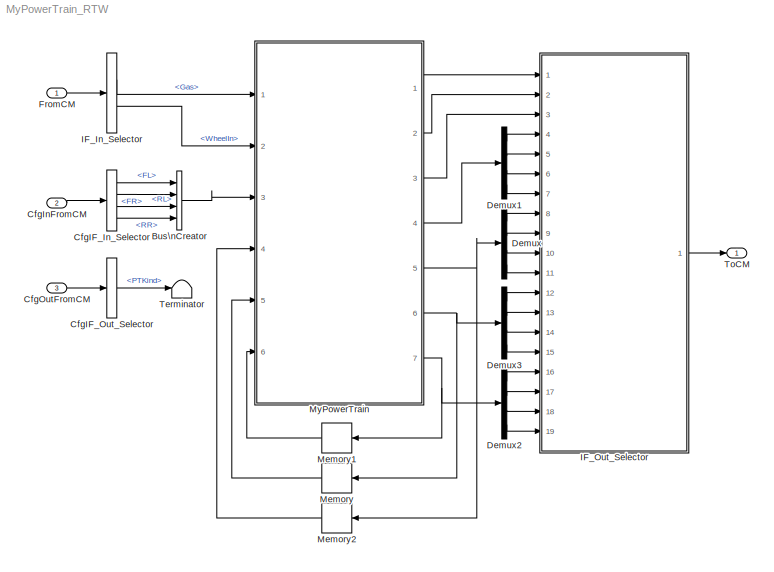
MODEL MyPowerTrain_RTW
KIND model
CONFIG InitFcn = vehicle = 'Car'; if ~length(which('cmcmd')), cmenv; end\nMyPowerTrain_RTW_bus
CONFIG PreLoadFcn = vehicle = 'Car'; if ~length(which('cmcmd')), cmenv; end\nMyPowerTrain_RTW_bus
BLOCK [BusCreator] Bus\nCreator
  DisplayOption = bar
  InheritFromInputs = on
  Inputs = 4
  Ports = [4, 1]
  SID = 65
BLOCK [BusSelector] CfgIF_In_Selector
  OutputSignals = Wheel_Iyy.FL,Wheel_Iyy.FR,Wheel_Iyy.RL,Wheel_Iyy.RR
  Ports = [1, 4]
  SID = 9
BLOCK [BusSelector] CfgIF_Out_Selector
  OutputSignals = PTKind
  Ports = [1, 1]
  SID = 12
BLOCK [Inport] CfgInFromCM
  OutDataTypeStr = Bus: cmPowerTrainCfgIn
  Port = 2
  SID = 8
BLOCK [Inport] CfgOutFromCM
  OutDataTypeStr = Bus: cmPowerTrainCfgOut
  Port = 3
  SID = 11
BLOCK [Demux] Demux
  Ports = [1, 4]
  SID = 66
BLOCK [Demux] Demux1
  Ports = [1, 4]
  SID = 67
BLOCK [Demux] Demux2
  Ports = [1, 4]
  SID = 68
BLOCK [Demux] Demux3
  Ports = [1, 4]
  SID = 69
BLOCK [Inport] FromCM
  OutDataTypeStr = Bus: cmPowerTrainIn
  SID = 1
BLOCK [BusSelector] IF_In_Selector
  OutputSignals = Gas,WheelIn
  Ports = [1, 2]
  SID = 2
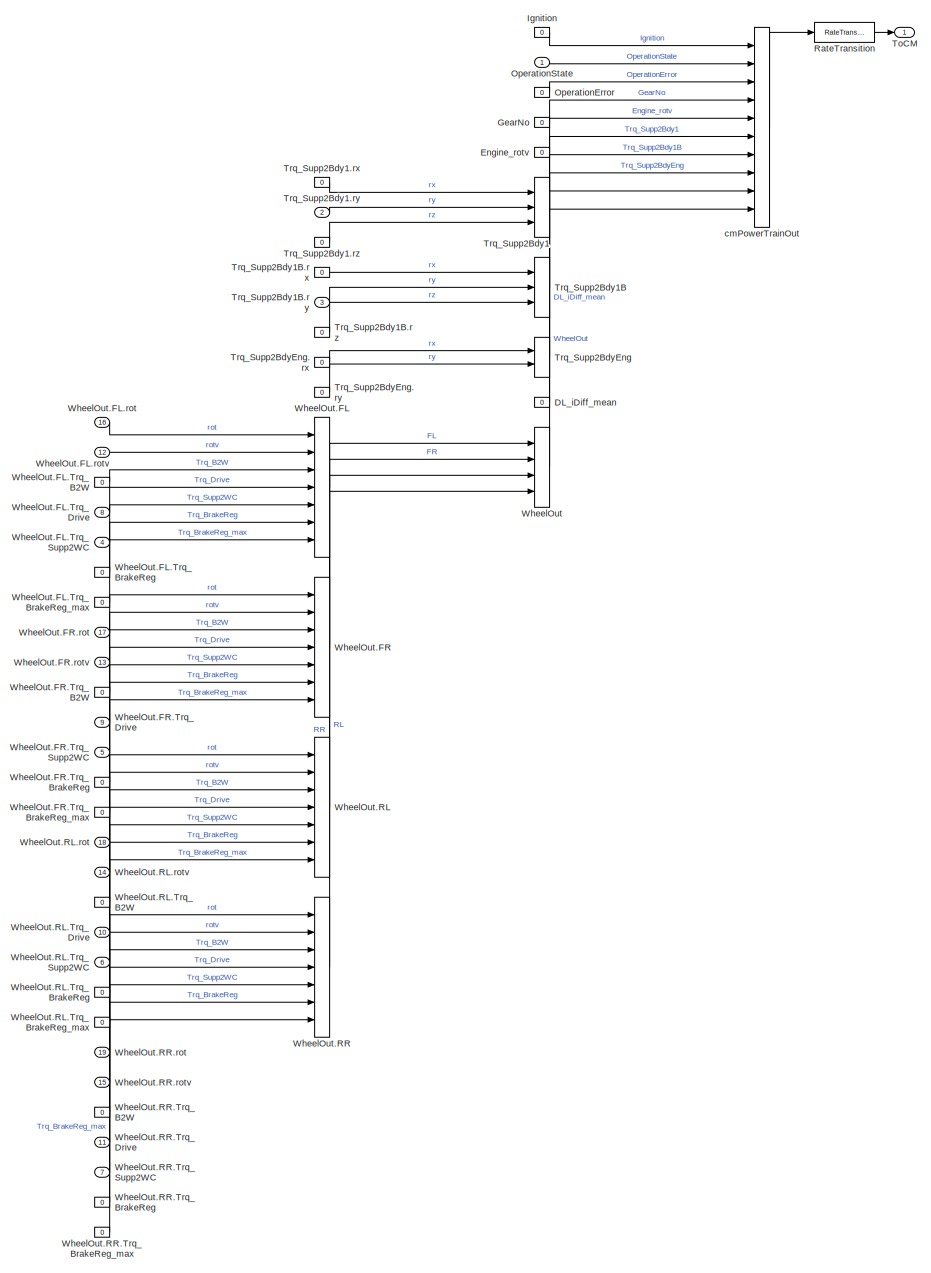
[diagram: IF_Out_Selector - part 1/1, most of the canvas]
BLOCK [SubSystem] IF_Out_Selector
  OpenFcn = cmSignalSelect('SignalSelection_CB',gcb)
  Ports = [19, 1]
  RequestExecContextInheritance = off
  SID = 5
  UserData = DataTag0
  UserDataPersistent = on
BLOCK [Constant] IF_Out_Selector/DL_iDiff_mean
  SID = 31
  Value = 0
BLOCK [Constant] IF_Out_Selector/Engine_rotv
  SID = 19
  Value = 0
BLOCK [Constant] IF_Out_Selector/GearNo
  SID = 18
  Value = 0
BLOCK [Constant] IF_Out_Selector/Ignition
  SID = 15
  Value = 0
BLOCK [Constant] IF_Out_Selector/OperationError
  SID = 17
  Value = 0
BLOCK [Inport] IF_Out_Selector/OperationState
  SID = 147
BLOCK [RateTransition] IF_Out_Selector/RateTransition
  OutPortSampleTime = str2num(get_param(bdroot,'FixedStep'))
  SID = 6
BLOCK [Outport] IF_Out_Selector/ToCM
  SID = 7
  VectorParamsAs1DForOutWhenUnconnected = off
BLOCK [BusCreator] IF_Out_Selector/Trq_Supp2Bdy1
  InheritFromInputs = on
  Inputs = 3
  Ports = [3, 1]
  SID = 20
BLOCK [Constant] IF_Out_Selector/Trq_Supp2Bdy1.rx
  SID = 21
  Value = 0
BLOCK [Inport] IF_Out_Selector/Trq_Supp2Bdy1.ry
  Port = 2
  SID = 148
BLOCK [Constant] IF_Out_Selector/Trq_Supp2Bdy1.rz
  SID = 23
  Value = 0
BLOCK [BusCreator] IF_Out_Selector/Trq_Supp2Bdy1B
  InheritFromInputs = on
  Inputs = 3
  Ports = [3, 1]
  SID = 24
BLOCK [Constant] IF_Out_Selector/Trq_Supp2Bdy1B.rx
  SID = 25
  Value = 0
BLOCK [Inport] IF_Out_Selector/Trq_Supp2Bdy1B.ry
  Port = 3
  SID = 149
BLOCK [Constant] IF_Out_Selector/Trq_Supp2Bdy1B.rz
  SID = 27
  Value = 0
BLOCK [BusCreator] IF_Out_Selector/Trq_Supp2BdyEng
  InheritFromInputs = on
  Inputs = 2
  Ports = [2, 1]
  SID = 28
BLOCK [Constant] IF_Out_Selector/Trq_Supp2BdyEng.rx
  SID = 29
  Value = 0
BLOCK [Constant] IF_Out_Selector/Trq_Supp2BdyEng.ry
  SID = 30
  Value = 0
BLOCK [BusCreator] IF_Out_Selector/WheelOut
  InheritFromInputs = on
  Inputs = 4
  Ports = [4, 1]
  SID = 32
BLOCK [BusCreator] IF_Out_Selector/WheelOut.FL
  InheritFromInputs = on
  Inputs = 7
  Ports = [7, 1]
  SID = 33
BLOCK [Constant] IF_Out_Selector/WheelOut.FL.Trq_B2W
  SID = 36
  Value = 0
BLOCK [Constant] IF_Out_Selector/WheelOut.FL.Trq_BrakeReg
  SID = 39
  Value = 0
BLOCK [Constant] IF_Out_Selector/WheelOut.FL.Trq_BrakeReg_max
  SID = 40
  Value = 0
BLOCK [Inport] IF_Out_Selector/WheelOut.FL.Trq_Drive
  Port = 8
  SID = 154
BLOCK [Inport] IF_Out_Selector/WheelOut.FL.Trq_Supp2WC
  Port = 4
  SID = 150
BLOCK [Inport] IF_Out_Selector/WheelOut.FL.rot
  Port = 16
  SID = 162
BLOCK [Inport] IF_Out_Selector/WheelOut.FL.rotv
  Port = 12
  SID = 158
BLOCK [BusCreator] IF_Out_Selector/WheelOut.FR
  InheritFromInputs = on
  Inputs = 7
  Ports = [7, 1]
  SID = 41
BLOCK [Constant] IF_Out_Selector/WheelOut.FR.Trq_B2W
  SID = 44
  Value = 0
BLOCK [Constant] IF_Out_Selector/WheelOut.FR.Trq_BrakeReg
  SID = 47
  Value = 0
BLOCK [Constant] IF_Out_Selector/WheelOut.FR.Trq_BrakeReg_max
  SID = 48
  Value = 0
BLOCK [Inport] IF_Out_Selector/WheelOut.FR.Trq_Drive
  Port = 9
  SID = 155
BLOCK [Inport] IF_Out_Selector/WheelOut.FR.Trq_Supp2WC
  Port = 5
  SID = 151
BLOCK [Inport] IF_Out_Selector/WheelOut.FR.rot
  Port = 17
  SID = 163
BLOCK [Inport] IF_Out_Selector/WheelOut.FR.rotv
  Port = 13
  SID = 159
BLOCK [BusCreator] IF_Out_Selector/WheelOut.RL
  InheritFromInputs = on
  Inputs = 7
  Ports = [7, 1]
  SID = 49
BLOCK [Constant] IF_Out_Selector/WheelOut.RL.Trq_B2W
  SID = 52
  Value = 0
BLOCK [Constant] IF_Out_Selector/WheelOut.RL.Trq_BrakeReg
  SID = 55
  Value = 0
BLOCK [Constant] IF_Out_Selector/WheelOut.RL.Trq_BrakeReg_max
  SID = 56
  Value = 0
BLOCK [Inport] IF_Out_Selector/WheelOut.RL.Trq_Drive
  Port = 10
  SID = 156
BLOCK [Inport] IF_Out_Selector/WheelOut.RL.Trq_Supp2WC
  Port = 6
  SID = 152
BLOCK [Inport] IF_Out_Selector/WheelOut.RL.rot
  Port = 18
  SID = 164
BLOCK [Inport] IF_Out_Selector/WheelOut.RL.rotv
  Port = 14
  SID = 160
BLOCK [BusCreator] IF_Out_Selector/WheelOut.RR
  InheritFromInputs = on
  Inputs = 7
  Ports = [7, 1]
  SID = 57
BLOCK [Constant] IF_Out_Selector/WheelOut.RR.Trq_B2W
  SID = 60
  Value = 0
BLOCK [Constant] IF_Out_Selector/WheelOut.RR.Trq_BrakeReg
  SID = 63
  Value = 0
BLOCK [Constant] IF_Out_Selector/WheelOut.RR.Trq_BrakeReg_max
  SID = 64
  Value = 0
BLOCK [Inport] IF_Out_Selector/WheelOut.RR.Trq_Drive
  Port = 11
  SID = 157
BLOCK [Inport] IF_Out_Selector/WheelOut.RR.Trq_Supp2WC
  Port = 7
  SID = 153
BLOCK [Inport] IF_Out_Selector/WheelOut.RR.rot
  Port = 19
  SID = 165
BLOCK [Inport] IF_Out_Selector/WheelOut.RR.rotv
  Port = 15
  SID = 161
BLOCK [BusCreator] IF_Out_Selector/cmPowerTrainOut
  InheritFromInputs = on
  Inputs = 10
  Ports = [10, 1]
  SID = 14
BLOCK [Memory] Memory
  SID = 70
BLOCK [Memory] Memory1
  SID = 71
BLOCK [Memory] Memory2
  SID = 72
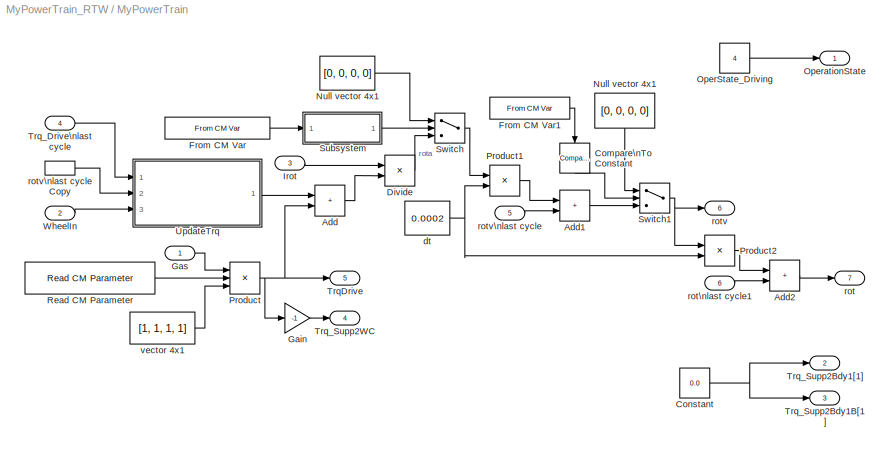
BLOCK [SubSystem] MyPowerTrain
  Ports = [6, 7]
  RequestExecContextInheritance = off
  SID = 73
BLOCK [Sum] MyPowerTrain/Add
  IconShape = rectangular
  Ports = [2, 1]
  SID = 80
BLOCK [Sum] MyPowerTrain/Add1
  IconShape = rectangular
  Ports = [2, 1]
  SID = 81
BLOCK [Sum] MyPowerTrain/Add2
  IconShape = rectangular
  Ports = [2, 1]
  SID = 82
BLOCK [Reference] MyPowerTrain/Compare\nTo Constant  REF=simulink/Logic and Bit\nOperations/Compare\nTo Constant
  FunctionWithSeparateData = off
  LogicOutDataTypeMode = uint8
  NameLocation = left
  Ports = [1, 1]
  RTWMemSecDataConstants = Inherit from model
  RTWMemSecDataInternal = Inherit from model
  RTWMemSecDataParameters = Inherit from model
  RTWMemSecFuncExecute = Inherit from model
  RTWMemSecFuncInitTerm = Inherit from model
  SID = 83
  ShowPortLabels = FromPortIcon
  SourceBlock = simulink/Logic and Bit\nOperations/Compare\nTo Constant
  SourceProductBaseCode = SL
  SourceType = Compare To Constant
  SystemSampleTime = -1
  ZeroCross = off
  const = 11
  relop = ==
BLOCK [Constant] MyPowerTrain/Constant
  SID = 84
  Value = 0.0
BLOCK [Product] MyPowerTrain/Divide
  Inputs = /*
  Ports = [2, 1]
  SID = 85
BLOCK [Reference] MyPowerTrain/From CM Var  REF=CarMaker4SL/From CM Var
  Ports = [0, 1]
  SID = 86
  SourceBlock = CarMaker4SL/From CM Var
  SourceProductName = CarMaker4SL
  SourceType = From CarMaker Var
  xname = SimCore.State
BLOCK [Reference] MyPowerTrain/From CM Var1  REF=CarMaker4SL/From CM Var
  Ports = [0, 1]
  SID = 87
  SourceBlock = CarMaker4SL/From CM Var
  SourceProductName = CarMaker4SL
  SourceType = From CarMaker Var
  xname = SimCore.State
BLOCK [Gain] MyPowerTrain/Gain
  Gain = -1
  SID = 88
BLOCK [Inport] MyPowerTrain/Gas
  SID = 74
BLOCK [Inport] MyPowerTrain/Irot
  Port = 3
  SID = 76
BLOCK [Constant] MyPowerTrain/Null vector 4x1
  SID = 89
  Value = [0, 0, 0, 0]
BLOCK [Constant] MyPowerTrain/Null vector 4x1 
  NameLocation = right
  SID = 90
  Value = [0, 0, 0, 0]
BLOCK [Constant] MyPowerTrain/OperState_Driving
  SID = 91
  Value = 4
BLOCK [Outport] MyPowerTrain/OperationState
  SID = 139
  VectorParamsAs1DForOutWhenUnconnected = off
BLOCK [Product] MyPowerTrain/Product
  Inputs = 3
  Ports = [3, 1]
  RndMeth = Zero
  SID = 92
BLOCK [Product] MyPowerTrain/Product1
  Ports = [2, 1]
  RndMeth = Zero
  SID = 93
BLOCK [Product] MyPowerTrain/Product2
  Ports = [2, 1]
  RndMeth = Zero
  SID = 94
BLOCK [Reference] MyPowerTrain/Read CM Parameter  REF=CarMaker4SL/Read CM Parameter
  Ports = [0, 1]
  SID = 95
  SourceBlock = CarMaker4SL/Read CM Parameter
  SourceProductName = CarMaker4SL
  SourceType = Read CarMaker Infofile Parameter
  xdefaults = []
  xfile = Vehicle
  xkey = MyPowerTrain.Gas2Trq
  xmuxed = on
  xnout = 1
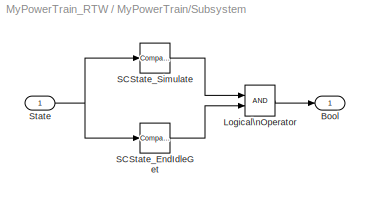
BLOCK [SubSystem] MyPowerTrain/Subsystem
  Ports = [1, 1]
  RequestExecContextInheritance = off
  SID = 96
BLOCK [Outport] MyPowerTrain/Subsystem/Bool
  SID = 101
  VectorParamsAs1DForOutWhenUnconnected = off
BLOCK [Logic] MyPowerTrain/Subsystem/Logical\nOperator
  AllPortsSameDT = off
  OutDataTypeStr = boolean
  Ports = [2, 1]
  SID = 98
BLOCK [Reference] MyPowerTrain/Subsystem/SCState_EndIdleGet  REF=simulink/Logic and Bit\nOperations/Compare\nTo Constant
  FunctionWithSeparateData = off
  LogicOutDataTypeMode = uint8
  Ports = [1, 1]
  RTWMemSecDataConstants = Inherit from model
  RTWMemSecDataInternal = Inherit from model
  RTWMemSecDataParameters = Inherit from model
  RTWMemSecFuncExecute = Inherit from model
  RTWMemSecFuncInitTerm = Inherit from model
  SID = 99
  ShowPortLabels = FromPortIcon
  SourceBlock = simulink/Logic and Bit\nOperations/Compare\nTo Constant
  SourceProductBaseCode = SL
  SourceType = Compare To Constant
  SystemSampleTime = -1
  ZeroCross = off
  const = 10
  relop = ~=
BLOCK [Reference] MyPowerTrain/Subsystem/SCState_Simulate  REF=simulink/Logic and Bit\nOperations/Compare\nTo Constant
  FunctionWithSeparateData = off
  LogicOutDataTypeMode = uint8
  Ports = [1, 1]
  RTWMemSecDataConstants = Inherit from model
  RTWMemSecDataInternal = Inherit from model
  RTWMemSecDataParameters = Inherit from model
  RTWMemSecFuncExecute = Inherit from model
  RTWMemSecFuncInitTerm = Inherit from model
  SID = 100
  ShowPortLabels = FromPortIcon
  SourceBlock = simulink/Logic and Bit\nOperations/Compare\nTo Constant
  SourceProductBaseCode = SL
  SourceType = Compare To Constant
  SystemSampleTime = -1
  ZeroCross = off
  const = 8
  relop = ~=
BLOCK [Inport] MyPowerTrain/Subsystem/State
  SID = 97
BLOCK [Switch] MyPowerTrain/Switch
  Criteria = u2 ~= 0
  InputSameDT = off
  SID = 102
  SaturateOnIntegerOverflow = off
BLOCK [Switch] MyPowerTrain/Switch1
  Criteria = u2 ~= 0
  InputSameDT = off
  SID = 103
  SaturateOnIntegerOverflow = off
BLOCK [Outport] MyPowerTrain/TrqDrive
  Port = 5
  SID = 143
  VectorParamsAs1DForOutWhenUnconnected = off
BLOCK [Inport] MyPowerTrain/Trq_Drive\nlast cycle
  Port = 4
  SID = 77
BLOCK [Outport] MyPowerTrain/Trq_Supp2Bdy1B[1]
  Port = 3
  SID = 141
  VectorParamsAs1DForOutWhenUnconnected = off
BLOCK [Outport] MyPowerTrain/Trq_Supp2Bdy1[1]
  Port = 2
  SID = 140
  VectorParamsAs1DForOutWhenUnconnected = off
BLOCK [Outport] MyPowerTrain/Trq_Supp2WC
  Port = 4
  SID = 142
  VectorParamsAs1DForOutWhenUnconnected = off
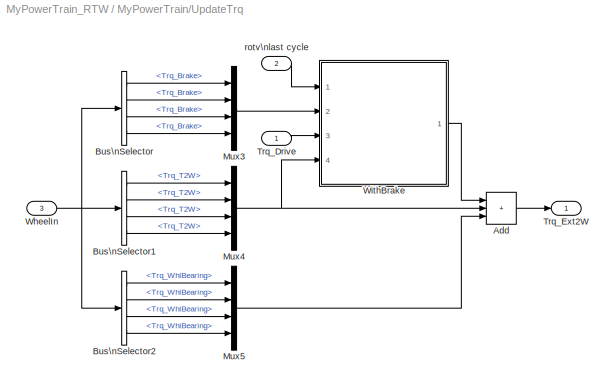
BLOCK [SubSystem] MyPowerTrain/UpdateTrq
  Ports = [3, 1]
  RequestExecContextInheritance = off
  SID = 104
BLOCK [Sum] MyPowerTrain/UpdateTrq/Add
  IconShape = rectangular
  Inputs = +++
  Ports = [3, 1]
  SID = 108
BLOCK [BusSelector] MyPowerTrain/UpdateTrq/Bus\nSelector
  OutputSignals = FL.Trq_Brake,FR.Trq_Brake,RL.Trq_Brake,RR.Trq_Brake
  Ports = [1, 4]
  SID = 109
BLOCK [BusSelector] MyPowerTrain/UpdateTrq/Bus\nSelector1
  OutputSignals = FL.Trq_T2W,FR.Trq_T2W,RL.Trq_T2W,RR.Trq_T2W
  Ports = [1, 4]
  SID = 110
BLOCK [BusSelector] MyPowerTrain/UpdateTrq/Bus\nSelector2
  OutputSignals = FL.Trq_WhlBearing,FR.Trq_WhlBearing,RL.Trq_WhlBearing,RR.Trq_WhlBearing
  Ports = [1, 4]
  SID = 111
BLOCK [Mux] MyPowerTrain/UpdateTrq/Mux3
  DisplayOption = bar
  Ports = [4, 1]
  SID = 112
BLOCK [Mux] MyPowerTrain/UpdateTrq/Mux4
  DisplayOption = bar
  Ports = [4, 1]
  SID = 113
BLOCK [Mux] MyPowerTrain/UpdateTrq/Mux5
  DisplayOption = bar
  Ports = [4, 1]
  SID = 114
BLOCK [Inport] MyPowerTrain/UpdateTrq/Trq_Drive
  SID = 105
BLOCK [Outport] MyPowerTrain/UpdateTrq/Trq_Ext2W
  SID = 135
  VectorParamsAs1DForOutWhenUnconnected = off
BLOCK [Inport] MyPowerTrain/UpdateTrq/WheelIn
  Port = 3
  SID = 107
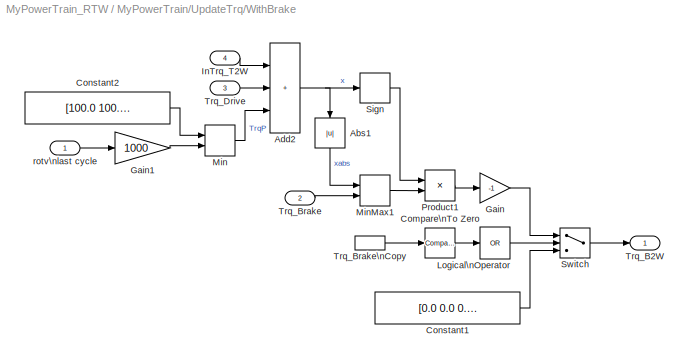
BLOCK [SubSystem] MyPowerTrain/UpdateTrq/WithBrake
  Ports = [4, 1]
  RequestExecContextInheritance = off
  SID = 115
BLOCK [Abs] MyPowerTrain/UpdateTrq/WithBrake/Abs1
  NameLocation = left
  SID = 120
  SaturateOnIntegerOverflow = off
BLOCK [Sum] MyPowerTrain/UpdateTrq/WithBrake/Add2
  IconShape = rectangular
  Inputs = +++
  Ports = [3, 1]
  SID = 121
BLOCK [Reference] MyPowerTrain/UpdateTrq/WithBrake/Compare\nTo Zero  REF=simulink/Logic and Bit\nOperations/Compare\nTo Zero
  FunctionWithSeparateData = off
  LogicOutDataTypeMode = uint8
  Ports = [1, 1]
  RTWMemSecDataConstants = Inherit from model
  RTWMemSecDataInternal = Inherit from model
  RTWMemSecDataParameters = Inherit from model
  RTWMemSecFuncExecute = Inherit from model
  RTWMemSecFuncInitTerm = Inherit from model
  SID = 122
  ShowPortLabels = FromPortIcon
  SourceBlock = simulink/Logic and Bit\nOperations/Compare\nTo Zero
  SourceProductBaseCode = SL
  SourceType = Compare To Zero
  SystemSampleTime = -1
  ZeroCross = off
  relop = >
BLOCK [Constant] MyPowerTrain/UpdateTrq/WithBrake/Constant1
  SID = 123
  Value = [0.0 0.0 0.0 0.0]
BLOCK [Constant] MyPowerTrain/UpdateTrq/WithBrake/Constant2
  SID = 124
  Value = [100.0 100.0 100.0 100.0]
BLOCK [Gain] MyPowerTrain/UpdateTrq/WithBrake/Gain
  Gain = -1
  SID = 125
BLOCK [Gain] MyPowerTrain/UpdateTrq/WithBrake/Gain1
  Gain = 1000
  SID = 126
BLOCK [Inport] MyPowerTrain/UpdateTrq/WithBrake/InTrq_T2W
  Port = 4
  SID = 119
BLOCK [Logic] MyPowerTrain/UpdateTrq/WithBrake/Logical\nOperator
  AllPortsSameDT = off
  Inputs = 1
  Operator = OR
  OutDataTypeStr = boolean
  Ports = [1, 1]
  SID = 127
BLOCK [MinMax] MyPowerTrain/UpdateTrq/WithBrake/Min
  Inputs = 2
  Ports = [2, 1]
  SID = 128
BLOCK [MinMax] MyPowerTrain/UpdateTrq/WithBrake/MinMax1
  Inputs = 2
  NameLocation = top
  Ports = [2, 1]
  SID = 129
BLOCK [Product] MyPowerTrain/UpdateTrq/WithBrake/Product1
  NameLocation = top
  Ports = [2, 1]
  RndMeth = Zero
  SID = 130
BLOCK [Signum] MyPowerTrain/UpdateTrq/WithBrake/Sign
  SID = 131
BLOCK [Switch] MyPowerTrain/UpdateTrq/WithBrake/Switch
  Criteria = u2 ~= 0
  InputSameDT = off
  SID = 132
  SaturateOnIntegerOverflow = off
BLOCK [Outport] MyPowerTrain/UpdateTrq/WithBrake/Trq_B2W
  SID = 134
  VectorParamsAs1DForOutWhenUnconnected = off
BLOCK [Inport] MyPowerTrain/UpdateTrq/WithBrake/Trq_Brake
  Port = 2
  SID = 117
BLOCK [InportShadow] MyPowerTrain/UpdateTrq/WithBrake/Trq_Brake\nCopy
  Port = 2
  SID = 133
BLOCK [Inport] MyPowerTrain/UpdateTrq/WithBrake/Trq_Drive
  Port = 3
  SID = 118
BLOCK [Inport] MyPowerTrain/UpdateTrq/WithBrake/rotv\nlast cycle
  SID = 116
BLOCK [Inport] MyPowerTrain/UpdateTrq/rotv\nlast cycle
  Port = 2
  SID = 106
BLOCK [Inport] MyPowerTrain/WheelIn
  Port = 2
  SID = 75
BLOCK [Constant] MyPowerTrain/dt
  SID = 136
  Value = 0.0002
BLOCK [Outport] MyPowerTrain/rot
  Port = 7
  SID = 145
  VectorParamsAs1DForOutWhenUnconnected = off
BLOCK [Inport] MyPowerTrain/rot\nlast cycle1
  Port = 6
  SID = 79
BLOCK [Outport] MyPowerTrain/rotv
  Port = 6
  SID = 144
  VectorParamsAs1DForOutWhenUnconnected = off
BLOCK [Inport] MyPowerTrain/rotv\nlast cycle
  Port = 5
  SID = 78
BLOCK [InportShadow] MyPowerTrain/rotv\nlast cycle Copy
  Port = 5
  SID = 137
BLOCK [Constant] MyPowerTrain/vector 4x1
  SID = 138
  Value = [1, 1, 1, 1]
BLOCK [Terminator] Terminator
  SID = 146
BLOCK [Outport] ToCM
  OutDataTypeStr = Bus: cmPowerTrainOut
  SID = 4
  VectorParamsAs1DForOutWhenUnconnected = off
LINE Bus\nCreator:1 -> MyPowerTrain:3
LINE CfgIF_In_Selector:1 -> Bus\nCreator:1
LINE CfgIF_In_Selector:2 -> Bus\nCreator:2
LINE CfgIF_In_Selector:3 -> Bus\nCreator:3
LINE CfgIF_In_Selector:4 -> Bus\nCreator:4
LINE CfgIF_Out_Selector:1 -> Terminator:1
LINE CfgInFromCM:1 -> CfgIF_In_Selector:1
LINE CfgOutFromCM:1 -> CfgIF_Out_Selector:1
LINE Demux1:1 -> IF_Out_Selector:4
LINE Demux1:2 -> IF_Out_Selector:5
LINE Demux1:3 -> IF_Out_Selector:6
LINE Demux1:4 -> IF_Out_Selector:7
LINE Demux2:1 -> IF_Out_Selector:16
LINE Demux2:2 -> IF_Out_Selector:17
LINE Demux2:3 -> IF_Out_Selector:18
LINE Demux2:4 -> IF_Out_Selector:19
LINE Demux3:1 -> IF_Out_Selector:12
LINE Demux3:2 -> IF_Out_Selector:13
LINE Demux3:3 -> IF_Out_Selector:14
LINE Demux3:4 -> IF_Out_Selector:15
LINE Demux:1 -> IF_Out_Selector:8
LINE Demux:2 -> IF_Out_Selector:9
LINE Demux:3 -> IF_Out_Selector:10
LINE Demux:4 -> IF_Out_Selector:11
LINE FromCM:1 -> IF_In_Selector:1
LINE IF_In_Selector:1 -> MyPowerTrain:1
LINE IF_In_Selector:2 -> MyPowerTrain:2
LINE IF_Out_Selector/DL_iDiff_mean:1 -> IF_Out_Selector/cmPowerTrainOut:9
LINE IF_Out_Selector/Engine_rotv:1 -> IF_Out_Selector/cmPowerTrainOut:5
LINE IF_Out_Selector/GearNo:1 -> IF_Out_Selector/cmPowerTrainOut:4
LINE IF_Out_Selector/Ignition:1 -> IF_Out_Selector/cmPowerTrainOut:1
LINE IF_Out_Selector/OperationError:1 -> IF_Out_Selector/cmPowerTrainOut:3
LINE IF_Out_Selector/OperationState:1 -> IF_Out_Selector/cmPowerTrainOut:2
LINE IF_Out_Selector/RateTransition:1 -> IF_Out_Selector/ToCM:1
LINE IF_Out_Selector/Trq_Supp2Bdy1.rx:1 -> IF_Out_Selector/Trq_Supp2Bdy1:1
LINE IF_Out_Selector/Trq_Supp2Bdy1.ry:1 -> IF_Out_Selector/Trq_Supp2Bdy1:2
LINE IF_Out_Selector/Trq_Supp2Bdy1.rz:1 -> IF_Out_Selector/Trq_Supp2Bdy1:3
LINE IF_Out_Selector/Trq_Supp2Bdy1:1 -> IF_Out_Selector/cmPowerTrainOut:6
LINE IF_Out_Selector/Trq_Supp2Bdy1B.rx:1 -> IF_Out_Selector/Trq_Supp2Bdy1B:1
LINE IF_Out_Selector/Trq_Supp2Bdy1B.ry:1 -> IF_Out_Selector/Trq_Supp2Bdy1B:2
LINE IF_Out_Selector/Trq_Supp2Bdy1B.rz:1 -> IF_Out_Selector/Trq_Supp2Bdy1B:3
LINE IF_Out_Selector/Trq_Supp2Bdy1B:1 -> IF_Out_Selector/cmPowerTrainOut:7
LINE IF_Out_Selector/Trq_Supp2BdyEng.rx:1 -> IF_Out_Selector/Trq_Supp2BdyEng:1
LINE IF_Out_Selector/Trq_Supp2BdyEng.ry:1 -> IF_Out_Selector/Trq_Supp2BdyEng:2
LINE IF_Out_Selector/Trq_Supp2BdyEng:1 -> IF_Out_Selector/cmPowerTrainOut:8
LINE IF_Out_Selector/WheelOut.FL.Trq_B2W:1 -> IF_Out_Selector/WheelOut.FL:3
LINE IF_Out_Selector/WheelOut.FL.Trq_BrakeReg:1 -> IF_Out_Selector/WheelOut.FL:6
LINE IF_Out_Selector/WheelOut.FL.Trq_BrakeReg_max:1 -> IF_Out_Selector/WheelOut.FL:7
LINE IF_Out_Selector/WheelOut.FL.Trq_Drive:1 -> IF_Out_Selector/WheelOut.FL:4
LINE IF_Out_Selector/WheelOut.FL.Trq_Supp2WC:1 -> IF_Out_Selector/WheelOut.FL:5
LINE IF_Out_Selector/WheelOut.FL.rot:1 -> IF_Out_Selector/WheelOut.FL:1
LINE IF_Out_Selector/WheelOut.FL.rotv:1 -> IF_Out_Selector/WheelOut.FL:2
LINE IF_Out_Selector/WheelOut.FL:1 -> IF_Out_Selector/WheelOut:1
LINE IF_Out_Selector/WheelOut.FR.Trq_B2W:1 -> IF_Out_Selector/WheelOut.FR:3
LINE IF_Out_Selector/WheelOut.FR.Trq_BrakeReg:1 -> IF_Out_Selector/WheelOut.FR:6
LINE IF_Out_Selector/WheelOut.FR.Trq_BrakeReg_max:1 -> IF_Out_Selector/WheelOut.FR:7
LINE IF_Out_Selector/WheelOut.FR.Trq_Drive:1 -> IF_Out_Selector/WheelOut.FR:4
LINE IF_Out_Selector/WheelOut.FR.Trq_Supp2WC:1 -> IF_Out_Selector/WheelOut.FR:5
LINE IF_Out_Selector/WheelOut.FR.rot:1 -> IF_Out_Selector/WheelOut.FR:1
LINE IF_Out_Selector/WheelOut.FR.rotv:1 -> IF_Out_Selector/WheelOut.FR:2
LINE IF_Out_Selector/WheelOut.FR:1 -> IF_Out_Selector/WheelOut:2
LINE IF_Out_Selector/WheelOut.RL.Trq_B2W:1 -> IF_Out_Selector/WheelOut.RL:3
LINE IF_Out_Selector/WheelOut.RL.Trq_BrakeReg:1 -> IF_Out_Selector/WheelOut.RL:6
LINE IF_Out_Selector/WheelOut.RL.Trq_BrakeReg_max:1 -> IF_Out_Selector/WheelOut.RL:7
LINE IF_Out_Selector/WheelOut.RL.Trq_Drive:1 -> IF_Out_Selector/WheelOut.RL:4
LINE IF_Out_Selector/WheelOut.RL.Trq_Supp2WC:1 -> IF_Out_Selector/WheelOut.RL:5
LINE IF_Out_Selector/WheelOut.RL.rot:1 -> IF_Out_Selector/WheelOut.RL:1
LINE IF_Out_Selector/WheelOut.RL.rotv:1 -> IF_Out_Selector/WheelOut.RL:2
LINE IF_Out_Selector/WheelOut.RL:1 -> IF_Out_Selector/WheelOut:3
LINE IF_Out_Selector/WheelOut.RR.Trq_B2W:1 -> IF_Out_Selector/WheelOut.RR:3
LINE IF_Out_Selector/WheelOut.RR.Trq_BrakeReg:1 -> IF_Out_Selector/WheelOut.RR:6
LINE IF_Out_Selector/WheelOut.RR.Trq_BrakeReg_max:1 -> IF_Out_Selector/WheelOut.RR:7
LINE IF_Out_Selector/WheelOut.RR.Trq_Drive:1 -> IF_Out_Selector/WheelOut.RR:4
LINE IF_Out_Selector/WheelOut.RR.Trq_Supp2WC:1 -> IF_Out_Selector/WheelOut.RR:5
LINE IF_Out_Selector/WheelOut.RR.rot:1 -> IF_Out_Selector/WheelOut.RR:1
LINE IF_Out_Selector/WheelOut.RR.rotv:1 -> IF_Out_Selector/WheelOut.RR:2
LINE IF_Out_Selector/WheelOut.RR:1 -> IF_Out_Selector/WheelOut:4
LINE IF_Out_Selector/WheelOut:1 -> IF_Out_Selector/cmPowerTrainOut:10
LINE IF_Out_Selector/cmPowerTrainOut:1 -> IF_Out_Selector/RateTransition:1
LINE IF_Out_Selector:1 -> ToCM:1
LINE Memory1:1 -> MyPowerTrain:6
LINE Memory2:1 -> MyPowerTrain:4
LINE Memory:1 -> MyPowerTrain:5
LINE MyPowerTrain/Add1:1 -> MyPowerTrain/Switch1:3
LINE MyPowerTrain/Add2:1 -> MyPowerTrain/rot:1
LINE MyPowerTrain/Add:1 -> MyPowerTrain/Divide:2
LINE MyPowerTrain/Compare\nTo Constant:1 -> MyPowerTrain/Switch1:2
NET MyPowerTrain/Constant:1 -> MyPowerTrain/Trq_Supp2Bdy1B[1]:1, MyPowerTrain/Trq_Supp2Bdy1[1]:1
LINE MyPowerTrain/Divide:1 -> MyPowerTrain/Switch:3
LINE MyPowerTrain/From CM Var1:1 -> MyPowerTrain/Compare\nTo Constant:1
LINE MyPowerTrain/From CM Var:1 -> MyPowerTrain/Subsystem:1
LINE MyPowerTrain/Gain:1 -> MyPowerTrain/Trq_Supp2WC:1
LINE MyPowerTrain/Gas:1 -> MyPowerTrain/Product:1
LINE MyPowerTrain/Irot:1 -> MyPowerTrain/Divide:1
LINE MyPowerTrain/Null vector 4x1 :1 -> MyPowerTrain/Switch1:1
LINE MyPowerTrain/Null vector 4x1:1 -> MyPowerTrain/Switch:1
LINE MyPowerTrain/OperState_Driving:1 -> MyPowerTrain/OperationState:1
LINE MyPowerTrain/Product1:1 -> MyPowerTrain/Add1:1
LINE MyPowerTrain/Product2:1 -> MyPowerTrain/Add2:1
NET MyPowerTrain/Product:1 -> MyPowerTrain/Add:2, MyPowerTrain/Gain:1, MyPowerTrain/TrqDrive:1
LINE MyPowerTrain/Read CM Parameter:1 -> MyPowerTrain/Product:2
LINE MyPowerTrain/Subsystem/Logical\nOperator:1 -> MyPowerTrain/Subsystem/Bool:1
LINE MyPowerTrain/Subsystem/SCState_EndIdleGet:1 -> MyPowerTrain/Subsystem/Logical\nOperator:2
LINE MyPowerTrain/Subsystem/SCState_Simulate:1 -> MyPowerTrain/Subsystem/Logical\nOperator:1
NET MyPowerTrain/Subsystem/State:1 -> MyPowerTrain/Subsystem/SCState_EndIdleGet:1, MyPowerTrain/Subsystem/SCState_Simulate:1
LINE MyPowerTrain/Subsystem:1 -> MyPowerTrain/Switch:2
NET MyPowerTrain/Switch1:1 -> MyPowerTrain/Product2:1, MyPowerTrain/rotv:1
LINE MyPowerTrain/Switch:1 -> MyPowerTrain/Product1:1
LINE MyPowerTrain/Trq_Drive\nlast cycle:1 -> MyPowerTrain/UpdateTrq:1
LINE MyPowerTrain/UpdateTrq/Add:1 -> MyPowerTrain/UpdateTrq/Trq_Ext2W:1
LINE MyPowerTrain/UpdateTrq/Bus\nSelector1:1 -> MyPowerTrain/UpdateTrq/Mux4:1
LINE MyPowerTrain/UpdateTrq/Bus\nSelector1:2 -> MyPowerTrain/UpdateTrq/Mux4:2
LINE MyPowerTrain/UpdateTrq/Bus\nSelector1:3 -> MyPowerTrain/UpdateTrq/Mux4:3
LINE MyPowerTrain/UpdateTrq/Bus\nSelector1:4 -> MyPowerTrain/UpdateTrq/Mux4:4
LINE MyPowerTrain/UpdateTrq/Bus\nSelector2:1 -> MyPowerTrain/UpdateTrq/Mux5:1
LINE MyPowerTrain/UpdateTrq/Bus\nSelector2:2 -> MyPowerTrain/UpdateTrq/Mux5:2
LINE MyPowerTrain/UpdateTrq/Bus\nSelector2:3 -> MyPowerTrain/UpdateTrq/Mux5:3
LINE MyPowerTrain/UpdateTrq/Bus\nSelector2:4 -> MyPowerTrain/UpdateTrq/Mux5:4
LINE MyPowerTrain/UpdateTrq/Bus\nSelector:1 -> MyPowerTrain/UpdateTrq/Mux3:1
LINE MyPowerTrain/UpdateTrq/Bus\nSelector:2 -> MyPowerTrain/UpdateTrq/Mux3:2
LINE MyPowerTrain/UpdateTrq/Bus\nSelector:3 -> MyPowerTrain/UpdateTrq/Mux3:3
LINE MyPowerTrain/UpdateTrq/Bus\nSelector:4 -> MyPowerTrain/UpdateTrq/Mux3:4
LINE MyPowerTrain/UpdateTrq/Mux3:1 -> MyPowerTrain/UpdateTrq/WithBrake:2
NET MyPowerTrain/UpdateTrq/Mux4:1 -> MyPowerTrain/UpdateTrq/Add:2, MyPowerTrain/UpdateTrq/WithBrake:4
LINE MyPowerTrain/UpdateTrq/Mux5:1 -> MyPowerTrain/UpdateTrq/Add:3
LINE MyPowerTrain/UpdateTrq/Trq_Drive:1 -> MyPowerTrain/UpdateTrq/WithBrake:3
NET MyPowerTrain/UpdateTrq/WheelIn:1 -> MyPowerTrain/UpdateTrq/Bus\nSelector1:1, MyPowerTrain/UpdateTrq/Bus\nSelector2:1, MyPowerTrain/UpdateTrq/Bus\nSelector:1
LINE MyPowerTrain/UpdateTrq/WithBrake/Abs1:1 -> MyPowerTrain/UpdateTrq/WithBrake/MinMax1:1
NET MyPowerTrain/UpdateTrq/WithBrake/Add2:1 -> MyPowerTrain/UpdateTrq/WithBrake/Abs1:1, MyPowerTrain/UpdateTrq/WithBrake/Sign:1
LINE MyPowerTrain/UpdateTrq/WithBrake/Compare\nTo Zero:1 -> MyPowerTrain/UpdateTrq/WithBrake/Logical\nOperator:1
LINE MyPowerTrain/UpdateTrq/WithBrake/Constant1:1 -> MyPowerTrain/UpdateTrq/WithBrake/Switch:3
LINE MyPowerTrain/UpdateTrq/WithBrake/Constant2:1 -> MyPowerTrain/UpdateTrq/WithBrake/Min:1
LINE MyPowerTrain/UpdateTrq/WithBrake/Gain1:1 -> MyPowerTrain/UpdateTrq/WithBrake/Min:2
LINE MyPowerTrain/UpdateTrq/WithBrake/Gain:1 -> MyPowerTrain/UpdateTrq/WithBrake/Switch:1
LINE MyPowerTrain/UpdateTrq/WithBrake/InTrq_T2W:1 -> MyPowerTrain/UpdateTrq/WithBrake/Add2:1
LINE MyPowerTrain/UpdateTrq/WithBrake/Logical\nOperator:1 -> MyPowerTrain/UpdateTrq/WithBrake/Switch:2
LINE MyPowerTrain/UpdateTrq/WithBrake/Min:1 -> MyPowerTrain/UpdateTrq/WithBrake/Add2:3
LINE MyPowerTrain/UpdateTrq/WithBrake/MinMax1:1 -> MyPowerTrain/UpdateTrq/WithBrake/Product1:2
LINE MyPowerTrain/UpdateTrq/WithBrake/Product1:1 -> MyPowerTrain/UpdateTrq/WithBrake/Gain:1
LINE MyPowerTrain/UpdateTrq/WithBrake/Sign:1 -> MyPowerTrain/UpdateTrq/WithBrake/Product1:1
LINE MyPowerTrain/UpdateTrq/WithBrake/Switch:1 -> MyPowerTrain/UpdateTrq/WithBrake/Trq_B2W:1
LINE MyPowerTrain/UpdateTrq/WithBrake/Trq_Brake:1 -> MyPowerTrain/UpdateTrq/WithBrake/MinMax1:2
LINE MyPowerTrain/UpdateTrq/WithBrake/Trq_Brake\nCopy:1 -> MyPowerTrain/UpdateTrq/WithBrake/Compare\nTo Zero:1
LINE MyPowerTrain/UpdateTrq/WithBrake/Trq_Drive:1 -> MyPowerTrain/UpdateTrq/WithBrake/Add2:2
LINE MyPowerTrain/UpdateTrq/WithBrake/rotv\nlast cycle:1 -> MyPowerTrain/UpdateTrq/WithBrake/Gain1:1
LINE MyPowerTrain/UpdateTrq/WithBrake:1 -> MyPowerTrain/UpdateTrq/Add:1
LINE MyPowerTrain/UpdateTrq/rotv\nlast cycle:1 -> MyPowerTrain/UpdateTrq/WithBrake:1
LINE MyPowerTrain/UpdateTrq:1 -> MyPowerTrain/Add:1
LINE MyPowerTrain/WheelIn:1 -> MyPowerTrain/UpdateTrq:3
NET MyPowerTrain/dt:1 -> MyPowerTrain/Product1:2, MyPowerTrain/Product2:2
LINE MyPowerTrain/rot\nlast cycle1:1 -> MyPowerTrain/Add2:2
LINE MyPowerTrain/rotv\nlast cycle Copy:1 -> MyPowerTrain/UpdateTrq:2
LINE MyPowerTrain/rotv\nlast cycle:1 -> MyPowerTrain/Add1:2
LINE MyPowerTrain/vector 4x1:1 -> MyPowerTrain/Product:3
LINE MyPowerTrain:1 -> IF_Out_Selector:1
LINE MyPowerTrain:2 -> IF_Out_Selector:2
LINE MyPowerTrain:3 -> IF_Out_Selector:3
LINE MyPowerTrain:4 -> Demux1:1
NET MyPowerTrain:5 -> Demux:1, Memory2:1
NET MyPowerTrain:6 -> Demux3:1, Memory:1
NET MyPowerTrain:7 -> Demux2:1, Memory1:1
note: NET lines group one-source signal fan-out (src -> all destinations, sorted); 1:1 wires keep LINE
